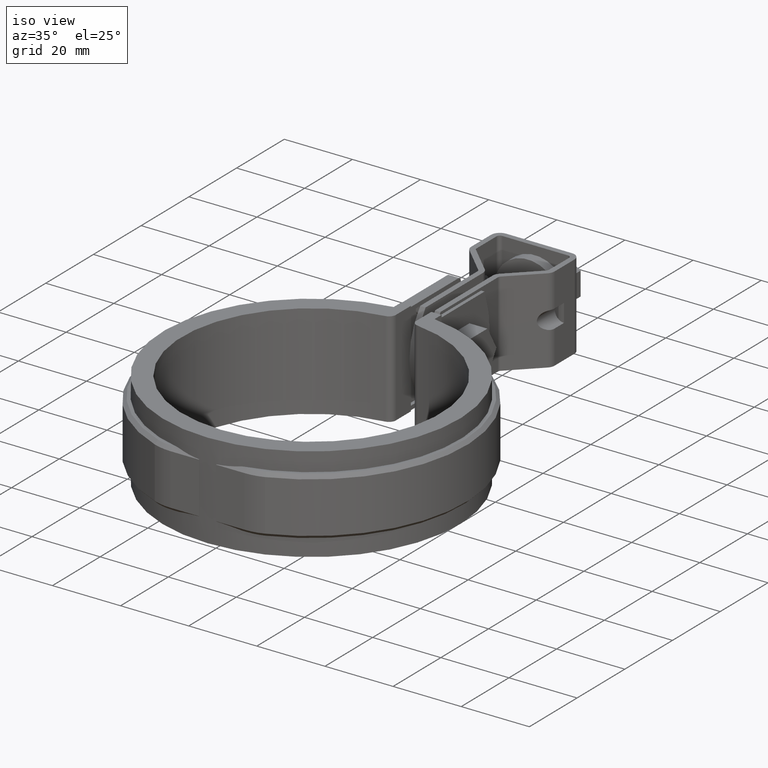
[diagram: clean part render]
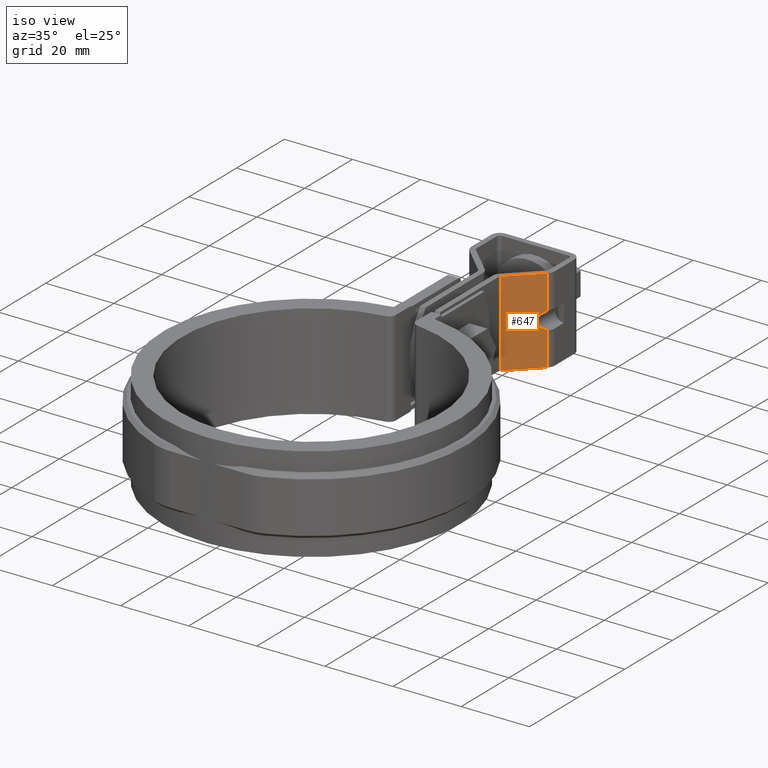
[diagram: same view with one face highlighted and labeled with its STEP entity id]
A machine part, iso view. The second image highlights one B-rep face of the part: STEP entity #647.
In plain terms, the highlighted planar face has unit normal (0.6983, -0.7158, 0).
Its self-contained STEP definition (entity closure, byte-faithful):
#647 = ADVANCED_FACE( '', ( #1212 ), #1213, .T. );
#1212 = FACE_OUTER_BOUND( '', #2520, .T. );
#1213 = PLANE( '', #2521 );
#2520 = EDGE_LOOP( '', ( #5833, #5834, #5835, #5836, #5837, #5838 ) );
#2521 = AXIS2_PLACEMENT_3D( '', #5839, #5840, #5841 );
#5833 = ORIENTED_EDGE( '', *, *, #7773, .T. );
#5834 = ORIENTED_EDGE( '', *, *, #7779, .F. );
#5835 = ORIENTED_EDGE( '', *, *, #7686, .T. );
#5836 = ORIENTED_EDGE( '', *, *, #7705, .F. );
#5837 = ORIENTED_EDGE( '', *, *, #7665, .F. );
#5838 = ORIENTED_EDGE( '', *, *, #7780, .F. );
#5839 = CARTESIAN_POINT( '', ( 3.90167616447229, 75.2503979413678, 12.5000000000035 ) );
#5840 = DIRECTION( '', ( 0.698323835530497, -0.715781964518509, 9.71445964287386E-016 ) );
#5841 = DIRECTION( '', ( -0.715781964518509, -0.698323835530497, -4.17751229416792E-014 ) );
#7665 = EDGE_CURVE( '', #8975, #8977, #8978, .T. );
#7686 = EDGE_CURVE( '', #9015, #9016, #9017, .T. );
#7705 = EDGE_CURVE( '', #8977, #9016, #9048, .T. );
#7773 = EDGE_CURVE( '', #9155, #9153, #9156, .T. );
#7779 = EDGE_CURVE( '', #9015, #9153, #9163, .T. );
#7780 = EDGE_CURVE( '', #9155, #8975, #9164, .T. );
#8975 = VERTEX_POINT( '', #12833 );
#8977 = VERTEX_POINT( '', #12835 );
#8978 = LINE( '', #12836, #12837 );
#9015 = VERTEX_POINT( '', #12885 );
#9016 = VERTEX_POINT( '', #12886 );
#9017 = ELLIPSE( '', #12887, 3.70224472166266, 2.64999999999997 );
#9048 = LINE( '', #12953, #12954 );
#9153 = VERTEX_POINT( '', #13127 );
#9155 = VERTEX_POINT( '', #13129 );
#9156 = LINE( '', #13130, #13131 );
#9163 = LINE( '', #13141, #13142 );
#9164 = LINE( '', #13143, #13144 );
#12833 = CARTESIAN_POINT( '', ( 3.30167616447228, 74.6650321147782, 12.5000000000035 ) );
#12835 = CARTESIAN_POINT( '', ( 11.4656419723821, 82.6298764371055, 12.5000000000040 ) );
#12836 = CARTESIAN_POINT( '', ( 3.90167616447229, 75.2503979413678, 12.5000000000035 ) );
#12837 = VECTOR( '', #14769, 1000.00000000000 );
#12885 = CARTESIAN_POINT( '', ( 11.4656419723825, 82.6298764371058, -2.53126104629425 ) );
#12886 = CARTESIAN_POINT( '', ( 11.4656419723824, 82.6298764371057, 2.53126104630222 ) );
#12887 = AXIS2_PLACEMENT_3D( '', #14808, #14809, #14810 );
#12953 = CARTESIAN_POINT( '', ( 11.4656419723821, 82.6298764371055, 12.5000000000040 ) );
#12954 = VECTOR( '', #14835, 1000.00000000000 );
#13127 = CARTESIAN_POINT( '', ( 11.4656419723829, 82.6298764371062, -12.4999999999960 ) );
#13129 = CARTESIAN_POINT( '', ( 3.30167616447305, 74.6650321147789, -12.4999999999965 ) );
#13130 = CARTESIAN_POINT( '', ( 3.90167616447306, 75.2503979413685, -12.4999999999965 ) );
#13131 = VECTOR( '', #14941, 1000.00000000000 );
#13141 = CARTESIAN_POINT( '', ( 11.4656419723821, 82.6298764371055, 12.5000000000040 ) );
#13142 = VECTOR( '', #14951, 1000.00000000000 );
#13143 = CARTESIAN_POINT( '', ( 3.30167616447228, 74.6650321147782, 12.5000000000035 ) );
#13144 = VECTOR( '', #14952, 1000.00000000000 );
#14769 = DIRECTION( '', ( 0.715781964518505, 0.698323835530500, 4.17751229416792E-014 ) );
#14808 = CARTESIAN_POINT( '', ( 12.2500000000031, 83.3951037457397, 4.02455846426619E-012 ) );
#14809 = DIRECTION( '', ( -0.698323835530495, 0.715781964518510, -1.00654841205320E-015 ) );
#14810 = DIRECTION( '', ( 0.715781964518510, 0.698323835530495, 4.18111029523031E-014 ) );
#14835 = DIRECTION( '', ( 3.05802634389892E-014, 2.84772205816503E-014, -1.00000000000000 ) );
#14941 = DIRECTION( '', ( 0.715781964518505, 0.698323835530500, 4.17751229416792E-014 ) );
#14951 = DIRECTION( '', ( 3.05802634389892E-014, 2.84772205816503E-014, -1.00000000000000 ) );
#14952 = DIRECTION( '', ( -3.06414937566803E-014, -2.85369574741963E-014, 1.00000000000000 ) );